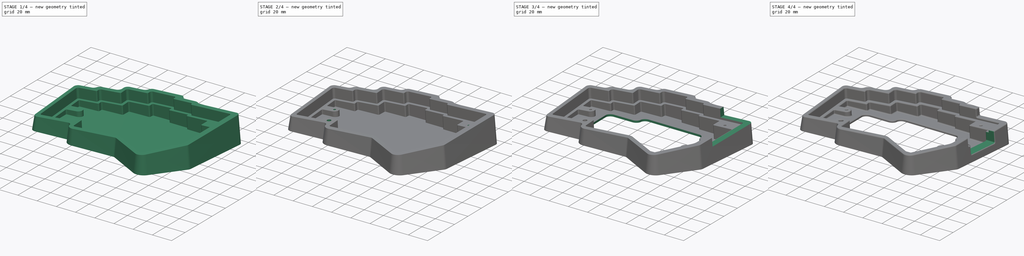
[diagram: build sequence overview — one tinted view per stage of 4, left to right]
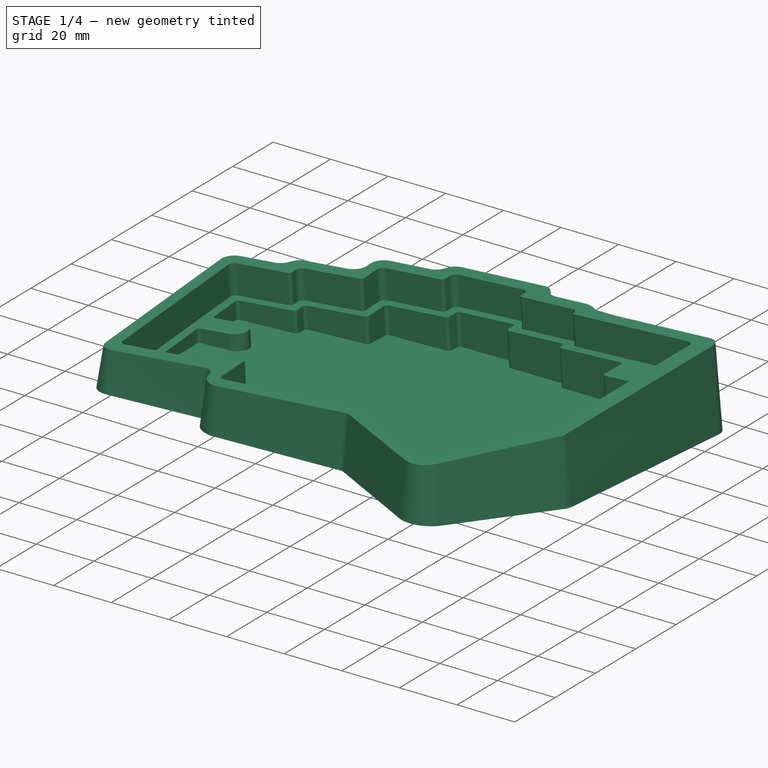
[diagram: stage 1 of 4 — iso view after this stage's code; geometry added in this stage tinted green]
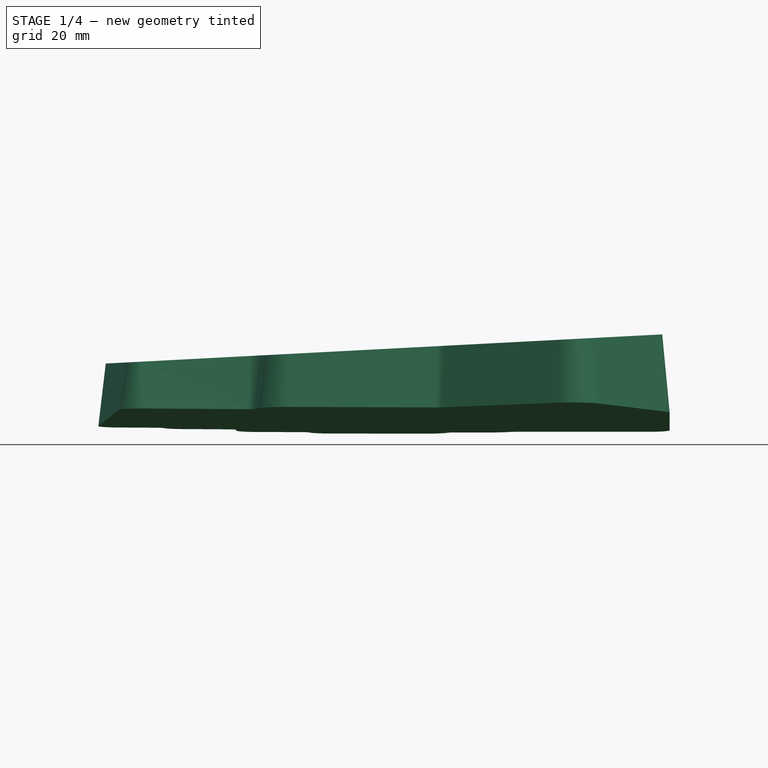
[diagram: stage 1 of 4 — front view after this stage's code; geometry added in this stage tinted green]
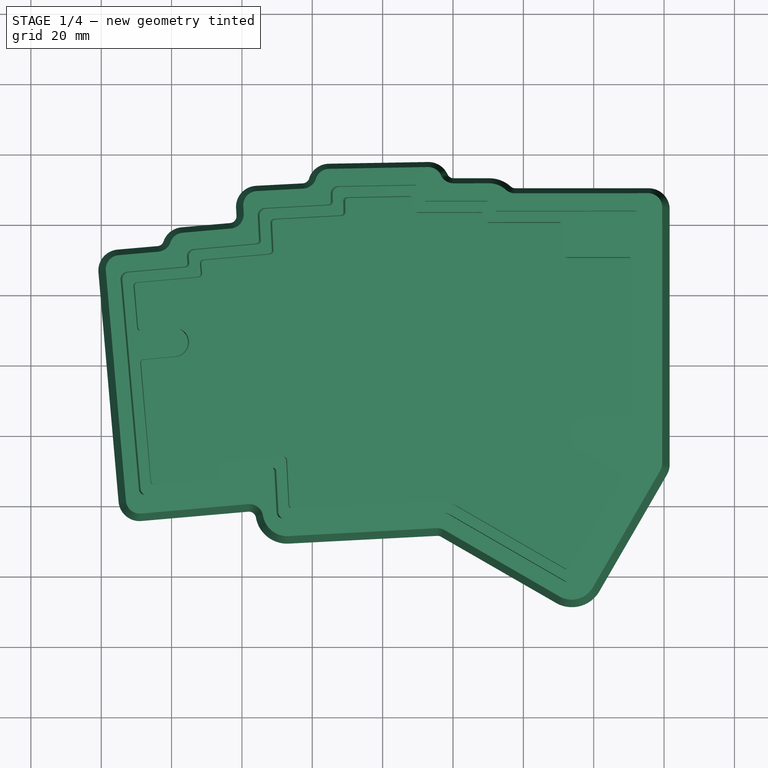
[diagram: stage 1 of 4 — top view after this stage's code; geometry added in this stage tinted green]
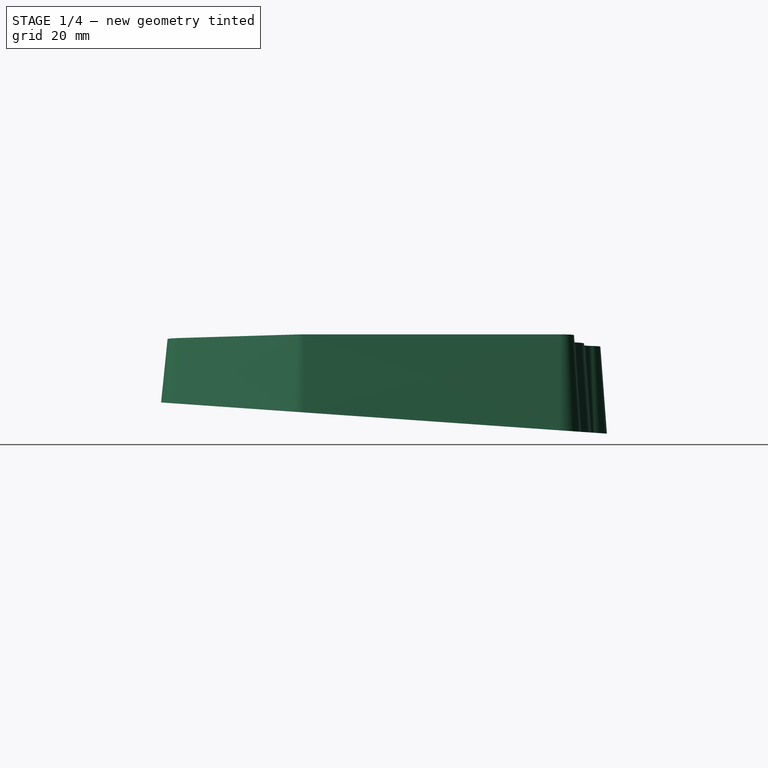
[diagram: stage 1 of 4 — right view after this stage's code; geometry added in this stage tinted green]
FCSTD DOCUMENT  (FreeCAD 0.20R)
Label: case
License: All rights reserved
LicenseURL: http://en.wikipedia.org/wiki/All_rights_reserved
objects: Sketcher::SketchObject×9, PartDesign::Pocket×6, PartDesign::Chamfer×2, PartDesign::AdditiveLoft×1, PartDesign::Hole×1, PartDesign::Fillet×1, PartDesign::Body×1
note: 32 computed .brp shape members not serialized (recipe doc carries the construction recipe); baked Part::Feature solids carry a one-line shape summary decoded from their .brp

FEATURE [Sketcher::SketchObject] Sketch001
  AttachmentOffset = pos=(0,0,20) rot=(0,1,0;-0.05236rad)
  FullyConstrained = false
  MapMode = 5
  Placement = pos=(0,0,20) rot=(0,1,0;6.23083rad)
  Support = -> [XY_Plane]
  sketch-geometry (31):
    g0: ArcOfCircle CenterX=53.7994 CenterY=-59.9303 CenterZ=0 NormalX=0 NormalY=0 NormalZ=1 AngleXU=0 Radius=7 StartAngle=4.18879 EndAngle=5.75959
    g1: ArcOfCircle CenterX=75.5899 CenterY=44.614 CenterZ=0 NormalX=0 NormalY=0 NormalZ=1 AngleXU=0 Radius=4 StartAngle=0 EndAngle=1.5708
    g2: ArcOfCircle CenterX=-27.1544 CenterY=-41.8034 CenterZ=0 NormalX=0 NormalY=0 NormalZ=1 AngleXU=0 Radius=7 StartAngle=3.31242 EndAngle=4.76475
    g3: ArcOfCircle CenterX=-37.9943 CenterY=-43.6734 CenterZ=0 NormalX=0 NormalY=0 NormalZ=1 AngleXU=0 Radius=4 StartAngle=0.170823 EndAngle=1.65806
    g4: LineSegment StartX=-26.788 StartY=-48.7938 StartZ=0 EndX=15.3912 EndY=-46.5833 EndZ=0
    g5: LineSegment StartX=50.2994 StartY=-65.9924 StartZ=0 EndX=17.6006 EndY=-47.1137 EndZ=0
    g6: ArcOfCircle CenterX=15.6006 CenterY=-50.5778 CenterZ=0 NormalX=0 NormalY=0 NormalZ=1 AngleXU=0 Radius=4 StartAngle=1.0472 EndAngle=1.62316
    g7: LineSegment StartX=59.8616 StartY=-63.4303 StartZ=0 EndX=79.054 EndY=-30.188 EndZ=0
    g8: LineSegment StartX=79.5899 StartY=44.614 StartZ=0 EndX=79.5899 EndY=-28.188 EndZ=0
    g9: ArcOfCircle CenterX=75.5899 CenterY=-28.188 CenterZ=0 NormalX=0 NormalY=0 NormalZ=1 AngleXU=0 Radius=4 StartAngle=5.75959 EndAngle=6.28319
    g10: LineSegment StartX=-68.7397 StartY=-42.348 StartZ=0 EndX=-38.3429 EndY=-39.6886 EndZ=0
    g11: ArcOfCircle CenterX=-69.0883 CenterY=-38.3632 CenterZ=0 NormalX=0 NormalY=0 NormalZ=1 AngleXU=0 Radius=4 StartAngle=3.22886 EndAngle=4.79966
    g12: LineSegment StartX=-73.0731 StartY=-38.7118 StartZ=0 EndX=-78.8036 EndY=26.788 EndZ=0
    g13: ArcOfCircle CenterX=-74.8188 CenterY=27.1366 CenterZ=0 NormalX=0 NormalY=0 NormalZ=1 AngleXU=0 Radius=4 StartAngle=1.65806 EndAngle=3.22886
    g14: LineSegment StartX=-63.8307 StartY=32.1132 StartZ=0 EndX=-75.1674 EndY=31.1214 EndZ=0
    g15: ArcOfCircle CenterX=-64.1793 CenterY=36.098 CenterZ=0 NormalX=0 NormalY=0 NormalZ=1 AngleXU=0 Radius=4 StartAngle=4.79966 EndAngle=5.95211
    g16: ArcOfCircle CenterX=-56.6138 CenterY=33.4975 CenterZ=0 NormalX=0 NormalY=0 NormalZ=1 AngleXU=0 Radius=4 StartAngle=1.65806 EndAngle=2.81051
    g17: ArcOfCircle CenterX=-35.6758 CenterY=45.32 CenterZ=0 NormalX=0 NormalY=0 NormalZ=1 AngleXU=0 Radius=4 StartAngle=1.62316 EndAngle=3.19395
    g18: LineSegment StartX=-39.5534 StartY=42.8805 StartZ=0 EndX=-39.6703 EndY=45.1106 EndZ=0
    g19: LineSegment StartX=-43.1993 StartY=38.6864 StartZ=0 EndX=-56.9624 EndY=37.4823 EndZ=0
    g20: ArcOfCircle CenterX=-43.5479 CenterY=42.6712 CenterZ=0 NormalX=0 NormalY=0 NormalZ=1 AngleXU=0 Radius=4 StartAngle=4.79966 EndAngle=6.33555
    g21: LineSegment StartX=-22.6116 StartY=50.0101 StartZ=0 EndX=-35.8851 EndY=49.3145 EndZ=0
    g22: ArcOfCircle CenterX=-22.821 CenterY=54.0047 CenterZ=0 NormalX=0 NormalY=0 NormalZ=1 AngleXU=0 Radius=4 StartAngle=4.76475 EndAngle=5.98022
    g23: ArcOfCircle CenterX=-15.1853 CenterY=51.6178 CenterZ=0 NormalX=0 NormalY=0 NormalZ=1 AngleXU=0 Radius=4 StartAngle=1.58825 EndAngle=2.83863
    g24: LineSegment StartX=12.8977 StartY=56.1086 StartZ=0 EndX=-15.2551 EndY=55.6172 EndZ=0
    g25: LineSegment StartX=30.3349 StartY=51.464 StartZ=0 EndX=20.2302 EndY=51.464 EndZ=0
    g26: ArcOfCircle CenterX=12.9675 CenterY=52.1093 CenterZ=0 NormalX=0 NormalY=0 NormalZ=1 AngleXU=0 Radius=4 StartAngle=0.432715 EndAngle=1.58825
    g27: ArcOfCircle CenterX=20.2302 CenterY=55.464 CenterZ=0 NormalX=0 NormalY=0 NormalZ=1 AngleXU=0 Radius=4 StartAngle=3.57431 EndAngle=4.71239
    g28: LineSegment StartX=75.5899 StartY=48.614 StartZ=0 EndX=37.7226 EndY=48.614 EndZ=0
    g29: ArcOfCircle CenterX=30.3349 CenterY=44.464 CenterZ=0 NormalX=0 NormalY=0 NormalZ=1 AngleXU=0 Radius=7 StartAngle=0.834423 EndAngle=1.5708
    g30: ArcOfCircle CenterX=37.7226 CenterY=52.614 CenterZ=0 NormalX=0 NormalY=0 NormalZ=1 AngleXU=0 Radius=4 StartAngle=3.97602 EndAngle=4.71239
  constraints (31):
    c: Coincident(g12,g13)
    c: Coincident(g13,g14)
    c: Coincident(g11,g12)
    c: Coincident(g10,g11)
    c: Coincident(g14,g15)
    c: Coincident(g15,g16)
    c: Coincident(g16,g19)
    c: Coincident(g19,g20)
    c: Coincident(g17,g18)
    c: Coincident(g18,g20)
    c: Coincident(g3,g10)
    c: Coincident(g17,g21)
    c: Coincident(g2,g3)
    c: Coincident(g2,g4)
    c: Coincident(g21,g22)
    c: Coincident(g22,g23)
    c: Coincident(g23,g24)
    c: Coincident(g24,g26)
    c: Coincident(g4,g6)
    c: Coincident(g26,g27)
    c: Coincident(g5,g6)
    c: Coincident(g25,g27)
    c: Coincident(g25,g29)
    c: Coincident(g29,g30)
    c: Coincident(g28,g30)
    c: Coincident(g0,g5)
    c: Coincident(g0,g7)
    c: Coincident(g1,g28)
    c: Coincident(g7,g9)
    c: Coincident(g8,g9)
    c: Coincident(g1,g8)
FEATURE [Sketcher::SketchObject] Sketch002
  AttachmentOffset = pos=(0,0,0) rot=(1,0,0;-0.069813rad)
  FullyConstrained = false
  MapMode = 5
  Placement = pos=(0,0,0) rot=(1,0,0;6.21337rad)
  Support = -> [XY_Plane]
  sketch-geometry (31):
    g0: LineSegment StartX=12.8628 StartY=58.1083 StartZ=0 EndX=-15.2901 EndY=57.6169 EndZ=0
    g1: ArcOfCircle CenterX=12.9675 CenterY=52.1093 CenterZ=0 NormalX=0 NormalY=0 NormalZ=1 AngleXU=0 Radius=6 StartAngle=0.432715 EndAngle=1.58825
    g2: LineSegment StartX=30.3349 StartY=53.464 StartZ=0 EndX=20.2302 EndY=53.464 EndZ=0
    g3: ArcOfCircle CenterX=20.2302 CenterY=55.464 CenterZ=0 NormalX=0 NormalY=0 NormalZ=1 AngleXU=0 Radius=2 StartAngle=3.57431 EndAngle=4.71239
    g4: ArcOfCircle CenterX=30.3349 CenterY=44.464 CenterZ=0 NormalX=0 NormalY=0 NormalZ=1 AngleXU=0 Radius=9 StartAngle=0.834423 EndAngle=1.5708
    g5: ArcOfCircle CenterX=37.7226 CenterY=52.614 CenterZ=0 NormalX=0 NormalY=0 NormalZ=1 AngleXU=0 Radius=2 StartAngle=3.97602 EndAngle=4.71239
    g6: LineSegment StartX=75.5899 StartY=50.614 StartZ=0 EndX=37.7226 EndY=50.614 EndZ=0
    g7: ArcOfCircle CenterX=75.5899 CenterY=44.614 CenterZ=0 NormalX=0 NormalY=0 NormalZ=1 AngleXU=0 Radius=6 StartAngle=0 EndAngle=1.5708
    g8: LineSegment StartX=81.5899 StartY=44.614 StartZ=0 EndX=81.5899 EndY=-28.188 EndZ=0
    g9: ArcOfCircle CenterX=75.5899 CenterY=-28.188 CenterZ=0 NormalX=0 NormalY=0 NormalZ=1 AngleXU=0 Radius=6 StartAngle=5.75959 EndAngle=6.28319
    g10: LineSegment StartX=61.5937 StartY=-64.4303 StartZ=0 EndX=80.7861 EndY=-31.188 EndZ=0
    g11: ArcOfCircle CenterX=53.7994 CenterY=-59.9303 CenterZ=0 NormalX=0 NormalY=0 NormalZ=1 AngleXU=0 Radius=9 StartAngle=4.18879 EndAngle=5.75959
    g12: LineSegment StartX=49.2994 StartY=-67.7245 StartZ=0 EndX=16.6006 EndY=-48.8458 EndZ=0
    g13: LineSegment StartX=-26.6834 StartY=-50.7911 StartZ=0 EndX=15.4959 EndY=-48.5806 EndZ=0
    g14: ArcOfCircle CenterX=15.6006 CenterY=-50.5778 CenterZ=0 NormalX=0 NormalY=0 NormalZ=1 AngleXU=0 Radius=2 StartAngle=1.0472 EndAngle=1.62316
    g15: ArcOfCircle CenterX=-27.1544 CenterY=-41.8034 CenterZ=0 NormalX=0 NormalY=0 NormalZ=1 AngleXU=0 Radius=9 StartAngle=3.31242 EndAngle=4.76475
    g16: LineSegment StartX=-68.5654 StartY=-44.3403 StartZ=0 EndX=-38.1686 EndY=-41.681 EndZ=0
    g17: ArcOfCircle CenterX=-37.9943 CenterY=-43.6734 CenterZ=0 NormalX=0 NormalY=0 NormalZ=1 AngleXU=0 Radius=2 StartAngle=0.170823 EndAngle=1.65806
    g18: ArcOfCircle CenterX=-69.0883 CenterY=-38.3632 CenterZ=0 NormalX=0 NormalY=0 NormalZ=1 AngleXU=0 Radius=6 StartAngle=3.22886 EndAngle=4.79966
    g19: LineSegment StartX=-75.0655 StartY=-38.8861 StartZ=0 EndX=-80.796 EndY=26.6137 EndZ=0
    g20: ArcOfCircle CenterX=-74.8188 CenterY=27.1366 CenterZ=0 NormalX=0 NormalY=0 NormalZ=1 AngleXU=0 Radius=6 StartAngle=1.65806 EndAngle=3.22886
    g21: LineSegment StartX=-64.005 StartY=34.1056 StartZ=0 EndX=-75.3417 EndY=33.1138 EndZ=0
    g22: ArcOfCircle CenterX=-64.1793 CenterY=36.098 CenterZ=0 NormalX=0 NormalY=0 NormalZ=1 AngleXU=0 Radius=2 StartAngle=4.79966 EndAngle=5.95211
    g23: ArcOfCircle CenterX=-56.6138 CenterY=33.4975 CenterZ=0 NormalX=0 NormalY=0 NormalZ=1 AngleXU=0 Radius=6 StartAngle=1.65806 EndAngle=2.81051
    g24: LineSegment StartX=-43.3736 StartY=40.6788 StartZ=0 EndX=-57.1367 EndY=39.4747 EndZ=0
    g25: ArcOfCircle CenterX=-43.5479 CenterY=42.6712 CenterZ=0 NormalX=0 NormalY=0 NormalZ=1 AngleXU=0 Radius=2 StartAngle=4.79966 EndAngle=6.33555
    g26: LineSegment StartX=-41.5507 StartY=42.7758 StartZ=0 EndX=-41.6675 EndY=45.006 EndZ=0
    g27: ArcOfCircle CenterX=-35.6758 CenterY=45.32 CenterZ=0 NormalX=0 NormalY=0 NormalZ=1 AngleXU=0 Radius=6 StartAngle=1.62316 EndAngle=3.19395
    g28: LineSegment StartX=-22.7163 StartY=52.0074 StartZ=0 EndX=-35.9898 EndY=51.3118 EndZ=0
    g29: ArcOfCircle CenterX=-22.821 CenterY=54.0047 CenterZ=0 NormalX=0 NormalY=0 NormalZ=1 AngleXU=0 Radius=2 StartAngle=4.76475 EndAngle=5.98022
    g30: ArcOfCircle CenterX=-15.1853 CenterY=51.6178 CenterZ=0 NormalX=0 NormalY=0 NormalZ=1 AngleXU=0 Radius=6 StartAngle=1.58825 EndAngle=2.83863
  constraints (31):
    c: Coincident(g19,g20)
    c: Coincident(g20,g21)
    c: Coincident(g18,g19)
    c: Coincident(g16,g18)
    c: Coincident(g21,g22)
    c: Coincident(g22,g23)
    c: Coincident(g23,g24)
    c: Coincident(g24,g25)
    c: Coincident(g26,g27)
    c: Coincident(g25,g26)
    c: Coincident(g16,g17)
    c: Coincident(g15,g17)
    c: Coincident(g27,g28)
    c: Coincident(g13,g15)
    c: Coincident(g28,g29)
    c: Coincident(g29,g30)
    c: Coincident(g0,g30)
    c: Coincident(g0,g1)
    c: Coincident(g13,g14)
    c: Coincident(g12,g14)
    c: Coincident(g1,g3)
    c: Coincident(g2,g3)
    c: Coincident(g2,g4)
    c: Coincident(g4,g5)
    c: Coincident(g5,g6)
    c: Coincident(g11,g12)
    c: Coincident(g10,g11)
    c: Coincident(g6,g7)
    c: Coincident(g9,g10)
    c: Coincident(g8,g9)
    c: Coincident(g7,g8)
FEATURE [PartDesign::AdditiveLoft] AdditiveLoft
  Closed = true
  Profile = -> Sketch001
  Ruled = true
  Sections = -> [Sketch002]
FEATURE [Sketcher::SketchObject] Sketch
  FullyConstrained = false
  MapMode = 5
  Placement = pos=(-1.04528,-2e-16,19.9452) rot=(0,-1,0;0.05236rad)
  Support = -> [AdditiveLoft]
  sketch-geometry (39):
    g0: LineSegment StartX=9.98545 StartY=51.057 StartZ=0 EndX=-11.7612 EndY=50.6775 EndZ=0
    g1: ArcOfCircle CenterX=10.0204 CenterY=49.0574 CenterZ=0 NormalX=0 NormalY=0 NormalZ=1 AngleXU=0 Radius=2 StartAngle=0.0174533 EndAngle=1.58825
    g2: ArcOfCircle CenterX=-11.7263 CenterY=48.6778 CenterZ=0 NormalX=0 NormalY=0 NormalZ=1 AngleXU=0 Radius=2 StartAngle=1.58825 EndAngle=3.15905
    g3: ArcOfCircle CenterX=72.5899 CenterY=41.614 CenterZ=0 NormalX=0 NormalY=0 NormalZ=1 AngleXU=0 Radius=2 StartAngle=0 EndAngle=1.5708
    g4: LineSegment StartX=74.5899 StartY=41.614 StartZ=0 EndX=74.5899 EndY=-24.9726 EndZ=0
    g5: LineSegment StartX=55.5315 StartY=-60.9303 StartZ=0 EndX=73.1162 EndY=-30.4726 EndZ=0
    g6: ArcOfCircle CenterX=63.5899 CenterY=-24.9726 CenterZ=0 NormalX=0 NormalY=0 NormalZ=1 AngleXU=0 Radius=11 StartAngle=5.75959 EndAngle=6.28319
    g7: ArcOfCircle CenterX=53.7994 CenterY=-59.9303 CenterZ=0 NormalX=0 NormalY=0 NormalZ=1 AngleXU=0 Radius=2 StartAngle=4.18879 EndAngle=5.75959
    g8: LineSegment StartX=52.7994 StartY=-61.6623 StartZ=0 EndX=20.1006 EndY=-42.7836 EndZ=0
    g9: LineSegment StartX=-27.0497 StartY=-43.8007 StartZ=0 EndX=15.1295 EndY=-41.5902 EndZ=0
    g10: ArcOfCircle CenterX=15.6006 CenterY=-50.5778 CenterZ=0 NormalX=0 NormalY=0 NormalZ=1 AngleXU=0 Radius=9 StartAngle=1.0472 EndAngle=1.62316
    g11: ArcOfCircle CenterX=-27.1544 CenterY=-41.8034 CenterZ=0 NormalX=0 NormalY=0 NormalZ=1 AngleXU=0 Radius=2 StartAngle=3.19395 EndAngle=4.76475
    g12: ArcOfCircle CenterX=-44.6939 CenterY=-33.2175 CenterZ=0 NormalX=0 NormalY=0 NormalZ=1 AngleXU=0 Radius=2 StartAngle=4.79966 EndAngle=6.37045
    g13: LineSegment StartX=-66.1869 StartY=-37.1055 StartZ=0 EndX=-44.5196 EndY=-35.2099 EndZ=0
    g14: ArcOfCircle CenterX=-66.3612 CenterY=-35.1131 CenterZ=0 NormalX=0 NormalY=0 NormalZ=1 AngleXU=0 Radius=2 StartAngle=3.22886 EndAngle=4.79966
    g15: LineSegment StartX=-68.3536 StartY=-35.2874 StartZ=0 EndX=-73.5611 EndY=24.2352 EndZ=0
    g16: ArcOfCircle CenterX=-71.5687 CenterY=24.4095 CenterZ=0 NormalX=0 NormalY=0 NormalZ=1 AngleXU=0 Radius=2 StartAngle=1.65806 EndAngle=3.22886
    g17: ArcOfCircle CenterX=-52.6765 CenterY=30.8305 CenterZ=0 NormalX=0 NormalY=0 NormalZ=1 AngleXU=0 Radius=2 StartAngle=1.65806 EndAngle=3.22886
    g18: ArcOfCircle CenterX=-32.5229 CenterY=42.4811 CenterZ=0 NormalX=0 NormalY=0 NormalZ=1 AngleXU=0 Radius=2 StartAngle=1.62316 EndAngle=3.19395
    g19: LineSegment StartX=30.3349 StartY=46.464 StartZ=0 EndX=13.0486 EndY=46.464 EndZ=0
    g20: LineSegment StartX=12.0488 StartY=47.4465 StartZ=0 EndX=12.0201 EndY=49.0923 EndZ=0
    g21: ArcOfCircle CenterX=13.0486 CenterY=47.464 CenterZ=0 NormalX=0 NormalY=0 NormalZ=1 AngleXU=0 Radius=1 StartAngle=3.15905 EndAngle=4.71239
    g22: LineSegment StartX=-13.726 StartY=48.6429 StartZ=0 EndX=-13.6875 EndY=46.4374 EndZ=0
    g23: LineSegment StartX=-14.635 StartY=45.4213 StartZ=0 EndX=-32.6275 EndY=44.4784 EndZ=0
    g24: ArcOfCircle CenterX=-14.6874 CenterY=46.4199 CenterZ=0 NormalX=0 NormalY=0 NormalZ=1 AngleXU=0 Radius=1 StartAngle=4.76475 EndAngle=6.30064
    g25: LineSegment StartX=72.5899 StartY=43.614 StartZ=0 EndX=33.3312 EndY=43.614 EndZ=0
    g26: ArcOfCircle CenterX=30.3349 CenterY=44.464 CenterZ=0 NormalX=0 NormalY=0 NormalZ=1 AngleXU=0 Radius=2 StartAngle=0.0500208 EndAngle=1.5708
    g27: ArcOfCircle CenterX=33.3312 CenterY=44.614 CenterZ=0 NormalX=0 NormalY=0 NormalZ=1 AngleXU=0 Radius=1 StartAngle=3.19161 EndAngle=4.71239
    g28: LineSegment StartX=-35.0674 StartY=34.3787 StartZ=0 EndX=-52.8508 EndY=32.8229 EndZ=0
    g29: LineSegment StartX=-34.5201 StartY=42.3764 StartZ=0 EndX=-34.1559 EndY=35.4273 EndZ=0
    g30: ArcOfCircle CenterX=-35.1546 CenterY=35.3749 CenterZ=0 NormalX=0 NormalY=0 NormalZ=1 AngleXU=0 Radius=1 StartAngle=4.79966 EndAngle=6.33555
    g31: LineSegment StartX=-55.4254 StartY=27.8295 StartZ=0 EndX=-71.743 EndY=26.4019 EndZ=0
    g32: LineSegment StartX=-54.6689 StartY=30.6562 StartZ=0 EndX=-54.5163 EndY=28.9129 EndZ=0
    g33: ArcOfCircle CenterX=-55.5125 CenterY=28.8257 CenterZ=0 NormalX=0 NormalY=0 NormalZ=1 AngleXU=0 Radius=1 StartAngle=4.79966 EndAngle=6.37045
    g34: LineSegment StartX=-42.7016 StartY=-33.0432 StartZ=0 EndX=-42.8541 EndY=-31.2998 EndZ=0
    g35: ArcOfCircle CenterX=-41.8579 CenterY=-31.2127 CenterZ=0 NormalX=0 NormalY=0 NormalZ=1 AngleXU=0 Radius=1 StartAngle=1.65806 EndAngle=3.22886
    g36: LineSegment StartX=-41.945 StartY=-30.2165 StartZ=0 EndX=-30.8516 EndY=-29.2459 EndZ=0
    g37: LineSegment StartX=-29.7658 StartY=-30.1898 StartZ=0 EndX=-29.1517 EndY=-41.9081 EndZ=0
    g38: ArcOfCircle CenterX=-30.7644 CenterY=-30.2421 CenterZ=0 NormalX=0 NormalY=0 NormalZ=1 AngleXU=0 Radius=1 StartAngle=0.0523599 EndAngle=1.65806
  constraints (39):
    c: Coincident(g15,g16)
    c: Coincident(g16,g31)
    c: Coincident(g14,g15)
    c: Coincident(g13,g14)
    c: Coincident(g31,g33)
    c: Coincident(g17,g32)
    c: Coincident(g32,g33)
    c: Coincident(g17,g28)
    c: Coincident(g12,g13)
    c: Coincident(g34,g35)
    c: Coincident(g12,g34)
    c: Coincident(g35,g36)
    c: Coincident(g28,g30)
    c: Coincident(g18,g29)
    c: Coincident(g29,g30)
    c: Coincident(g18,g23)
    c: Coincident(g36,g38)
    c: Coincident(g37,g38)
    c: Coincident(g11,g37)
    c: Coincident(g9,g11)
    c: Coincident(g23,g24)
    c: Coincident(g2,g22)
    c: Coincident(g22,g24)
    c: Coincident(g0,g2)
    c: Coincident(g0,g1)
    c: Coincident(g1,g20)
    c: Coincident(g20,g21)
    c: Coincident(g19,g21)
    c: Coincident(g9,g10)
    c: Coincident(g8,g10)
    c: Coincident(g19,g26)
    c: Coincident(g26,g27)
    c: Coincident(g25,g27)
    c: Coincident(g7,g8)
    c: Coincident(g5,g7)
    c: Coincident(g3,g25)
    c: Coincident(g5,g6)
    c: Coincident(g4,g6)
    c: Coincident(g3,g4)
FEATURE [PartDesign::Pocket] Pocket
  BaseFeature = -> AdditiveLoft
  Direction = (0.052336,0,-0.99863)
  Length = 10
  Length2 = 5
  Profile = -> Sketch
  ReferenceAxis = -> Sketch [N_Axis]
  Type = 0
FEATURE [Sketcher::SketchObject] Sketch003
  FullyConstrained = false
  MapMode = 5
  Placement = pos=(-0.521925,-1e-16,9.95892) rot=(0,-1,0;0.05236rad)
  Support = -> [Pocket]
  sketch-geometry (54):
    g0: ArcOfCircle CenterX=15.6006 CenterY=-50.5778 CenterZ=0 NormalX=0 NormalY=0 NormalZ=1 AngleXU=0 Radius=12 StartAngle=1.0472 EndAngle=1.62316
    g1: ArcOfCircle CenterX=50.5899 CenterY=39.614 CenterZ=0 NormalX=0 NormalY=0 NormalZ=1 AngleXU=0 Radius=1 StartAngle=0 EndAngle=1.5708
    g2: LineSegment StartX=51.5899 StartY=39.614 StartZ=0 EndX=51.5899 EndY=31.614 EndZ=0
    g3: ArcOfCircle CenterX=52.5899 CenterY=31.614 CenterZ=0 NormalX=0 NormalY=0 NormalZ=1 AngleXU=0 Radius=1 StartAngle=3.14159 EndAngle=4.71239
    g4: LineSegment StartX=70.5899 StartY=30.614 StartZ=0 EndX=52.5899 EndY=30.614 EndZ=0
    g5: ArcOfCircle CenterX=70.5899 CenterY=29.614 CenterZ=0 NormalX=0 NormalY=0 NormalZ=1 AngleXU=0 Radius=1 StartAngle=0 EndAngle=1.5708
    g6: LineSegment StartX=52.5674 StartY=-58.0642 StartZ=0 EndX=21.6006 EndY=-40.1855 EndZ=0
    g7: ArcOfCircle CenterX=53.0674 CenterY=-57.1982 CenterZ=0 NormalX=0 NormalY=0 NormalZ=1 AngleXU=0 Radius=1 StartAngle=4.18879 EndAngle=5.75959
    g8: ArcOfCircle CenterX=-46.8606 CenterY=-31.3994 CenterZ=0 NormalX=0 NormalY=0 NormalZ=1 AngleXU=0 Radius=1 StartAngle=4.79966 EndAngle=6.37045
    g9: LineSegment StartX=-64.4559 StartY=-33.9426 StartZ=0 EndX=-46.7735 EndY=-32.3956 EndZ=0
    g10: ArcOfCircle CenterX=-64.5431 CenterY=-32.9464 CenterZ=0 NormalX=0 NormalY=0 NormalZ=1 AngleXU=0 Radius=1 StartAngle=3.22886 EndAngle=4.79966
    g11: ArcOfCircle CenterX=-50.5098 CenterY=29.0124 CenterZ=0 NormalX=0 NormalY=0 NormalZ=1 AngleXU=0 Radius=1 StartAngle=1.65806 EndAngle=3.22886
    g12: ArcOfCircle CenterX=-30.4209 CenterY=40.5885 CenterZ=0 NormalX=0 NormalY=0 NormalZ=1 AngleXU=0 Radius=1 StartAngle=1.62316 EndAngle=3.19395
    g13: ArcOfCircle CenterX=-9.69173 CenterY=46.713 CenterZ=0 NormalX=0 NormalY=0 NormalZ=1 AngleXU=0 Radius=1 StartAngle=1.58825 EndAngle=3.15905
    g14: LineSegment StartX=8.03811 StartY=48.0226 StartZ=0 EndX=-9.70918 EndY=47.7128 EndZ=0
    g15: ArcOfCircle CenterX=8.05557 CenterY=47.0228 CenterZ=0 NormalX=0 NormalY=0 NormalZ=1 AngleXU=0 Radius=1 StartAngle=0.0174533 EndAngle=1.58825
    g16: ArcOfCircle CenterX=28.3349 CenterY=42.464 CenterZ=0 NormalX=0 NormalY=0 NormalZ=1 AngleXU=0 Radius=1 StartAngle=0 EndAngle=1.5708
    g17: LineSegment StartX=50.5899 StartY=40.614 StartZ=0 EndX=30.3349 EndY=40.614 EndZ=0
    g18: LineSegment StartX=29.3349 StartY=41.614 StartZ=0 EndX=29.3349 EndY=42.464 EndZ=0
    g19: ArcOfCircle CenterX=30.3349 CenterY=41.614 CenterZ=0 NormalX=0 NormalY=0 NormalZ=1 AngleXU=0 Radius=1 StartAngle=3.14159 EndAngle=4.71239
    g20: LineSegment StartX=28.3349 StartY=43.464 StartZ=0 EndX=10.1005 EndY=43.464 EndZ=0
    g21: LineSegment StartX=9.10069 StartY=44.4465 StartZ=0 EndX=9.05541 EndY=47.0402 EndZ=0
    g22: ArcOfCircle CenterX=10.1005 CenterY=44.464 CenterZ=0 NormalX=0 NormalY=0 NormalZ=1 AngleXU=0 Radius=1 StartAngle=3.15905 EndAngle=4.71239
    g23: LineSegment StartX=-11.5849 StartY=42.577 StartZ=0 EndX=-30.4733 EndY=41.5871 EndZ=0
    g24: LineSegment StartX=-10.6916 StartY=46.6955 StartZ=0 EndX=-10.6374 EndY=43.5931 EndZ=0
    g25: ArcOfCircle CenterX=-11.6373 CenterY=43.5757 CenterZ=0 NormalX=0 NormalY=0 NormalZ=1 AngleXU=0 Radius=1 StartAngle=4.76475 EndAngle=6.30064
    g26: LineSegment StartX=-31.9199 StartY=31.6427 StartZ=0 EndX=-50.5969 EndY=30.0086 EndZ=0
    g27: LineSegment StartX=-31.4196 StartY=40.5362 StartZ=0 EndX=-31.0084 EndY=32.6912 EndZ=0
    g28: ArcOfCircle CenterX=-32.007 CenterY=32.6388 CenterZ=0 NormalX=0 NormalY=0 NormalZ=1 AngleXU=0 Radius=1 StartAngle=4.79966 EndAngle=6.33555
    g29: LineSegment StartX=-51.506 StartY=28.9253 StartZ=0 EndX=-51.2663 EndY=26.1857 EndZ=0
    g30: ArcOfCircle CenterX=-52.2625 CenterY=26.0986 CenterZ=0 NormalX=0 NormalY=0 NormalZ=1 AngleXU=0 Radius=1 StartAngle=4.79966 EndAngle=6.37045
    g31: LineSegment StartX=-52.1753 StartY=25.1024 StartZ=0 EndX=-69.4892 EndY=23.5876 EndZ=0
    g32: ArcOfCircle CenterX=-69.402 CenterY=22.5914 CenterZ=0 NormalX=0 NormalY=0 NormalZ=1 AngleXU=0 Radius=1 StartAngle=1.65806 EndAngle=3.22886
    g33: LineSegment StartX=-45.8645 StartY=-31.3123 StartZ=0 EndX=-46.1041 EndY=-28.5727 EndZ=0
    g34: ArcOfCircle CenterX=-45.1079 CenterY=-28.4856 CenterZ=0 NormalX=0 NormalY=0 NormalZ=1 AngleXU=0 Radius=1 StartAngle=1.65806 EndAngle=3.22886
    g35: LineSegment StartX=-45.1951 StartY=-27.4894 StartZ=0 EndX=-28.0183 EndY=-25.9866 EndZ=0
    g36: ArcOfCircle CenterX=-27.9311 CenterY=-26.9828 CenterZ=0 NormalX=0 NormalY=0 NormalZ=1 AngleXU=0 Radius=1 StartAngle=0.0523599 EndAngle=1.65806
    g37: LineSegment StartX=-25.2095 StartY=-40.7001 StartZ=0 EndX=14.9725 EndY=-38.5943 EndZ=0
    g38: LineSegment StartX=-26.2604 StartY=-39.7538 StartZ=0 EndX=-26.9325 EndY=-26.9305 EndZ=0
    g39: ArcOfCircle CenterX=-25.2618 CenterY=-39.7015 CenterZ=0 NormalX=0 NormalY=0 NormalZ=1 AngleXU=0 Radius=1 StartAngle=3.19395 EndAngle=4.76475
    g40: LineSegment StartX=53.9334 StartY=-57.6982 StartZ=0 EndX=68.6209 EndY=-32.2587 EndZ=0
    g41: ArcOfCircle CenterX=67.7549 CenterY=-31.7587 CenterZ=0 NormalX=0 NormalY=0 NormalZ=1 AngleXU=0 Radius=1 StartAngle=5.75959 EndAngle=7.33038
    g42: LineSegment StartX=71.5899 StartY=29.614 StartZ=0 EndX=71.5899 EndY=-13.7 EndZ=0
    g43: ArcOfCircle CenterX=70.5899 CenterY=-13.7 CenterZ=0 NormalX=0 NormalY=0 NormalZ=1 AngleXU=0 Radius=1 StartAngle=4.71239 EndAngle=6.28319
    g44: LineSegment StartX=58.8686 StartY=-14.7 StartZ=0 EndX=70.5899 EndY=-14.7 EndZ=0
    g45: LineSegment StartX=56.3686 StartY=-24.0301 StartZ=0 EndX=68.2549 EndY=-30.8927 EndZ=0
    g46: ArcOfCircle CenterX=58.8686 CenterY=-19.7 CenterZ=0 NormalX=0 NormalY=0 NormalZ=1 AngleXU=0 Radius=5 StartAngle=1.5708 EndAngle=4.18879
    g47: ArcOfCircle CenterX=-59.0029 CenterY=6.55795 CenterZ=0 NormalX=0 NormalY=0 NormalZ=1 AngleXU=0 Radius=4.1 StartAngle=4.79966 EndAngle=7.94125
    g48: LineSegment StartX=-68.2883 StartY=9.86125 StartZ=0 EndX=-59.3602 EndY=10.6424 EndZ=0
    g49: LineSegment StartX=-69.3716 StartY=10.7703 StartZ=0 EndX=-70.3982 EndY=22.5043 EndZ=0
    g50: ArcOfCircle CenterX=-68.3754 CenterY=10.8574 CenterZ=0 NormalX=0 NormalY=0 NormalZ=1 AngleXU=0 Radius=1 StartAngle=3.22886 EndAngle=4.79966
    g51: LineSegment StartX=-67.5736 StartY=1.69245 StartZ=0 EndX=-58.6456 EndY=2.47356 EndZ=0
    g52: LineSegment StartX=-65.5393 StartY=-33.0336 StartZ=0 EndX=-68.4827 EndY=0.609102 EndZ=0
    g53: ArcOfCircle CenterX=-67.4865 CenterY=0.696258 CenterZ=0 NormalX=0 NormalY=0 NormalZ=1 AngleXU=0 Radius=1 StartAngle=1.65806 EndAngle=3.22886
  constraints (54):
    c: Coincident(g32,g49)
    c: Coincident(g31,g32)
    c: Coincident(g49,g50)
    c: Coincident(g52,g53)
    c: Coincident(g48,g50)
    c: Coincident(g51,g53)
    c: Coincident(g10,g52)
    c: Coincident(g9,g10)
    c: Coincident(g47,g48)
    c: Coincident(g47,g51)
    c: Coincident(g30,g31)
    c: Coincident(g11,g29)
    c: Coincident(g29,g30)
    c: Coincident(g11,g26)
    c: Coincident(g8,g9)
    c: Coincident(g33,g34)
    c: Coincident(g8,g33)
    c: Coincident(g34,g35)
    c: Coincident(g26,g28)
    c: Coincident(g12,g27)
    c: Coincident(g27,g28)
    c: Coincident(g12,g23)
    c: Coincident(g35,g36)
    c: Coincident(g36,g38)
    c: Coincident(g38,g39)
    c: Coincident(g37,g39)
    c: Coincident(g23,g25)
    c: Coincident(g13,g24)
    c: Coincident(g24,g25)
    c: Coincident(g13,g14)
    c: Coincident(g14,g15)
    c: Coincident(g15,g21)
    c: Coincident(g21,g22)
    c: Coincident(g20,g22)
    c: Coincident(g0,g37)
    c: Coincident(g0,g6)
    c: Coincident(g16,g20)
    c: Coincident(g18,g19)
    c: Coincident(g16,g18)
    c: Coincident(g17,g19)
    c: Coincident(g1,g17)
    c: Coincident(g2,g3)
    c: Coincident(g1,g2)
    c: Coincident(g6,g7)
    c: Coincident(g3,g4)
    c: Coincident(g7,g40)
    c: Coincident(g45,g46)
    c: Coincident(g44,g46)
    c: Coincident(g41,g45)
    c: Coincident(g40,g41)
    c: Coincident(g43,g44)
    c: Coincident(g4,g5)
    c: Coincident(g42,g43)
    c: Coincident(g5,g42)
FEATURE [Sketcher::SketchObject] Sketch004
  FullyConstrained = false
  MapMode = 5
  Placement = pos=(-0.521925,-1e-16,9.95892) rot=(0,-1,0;0.05236rad)
  Support = -> [Pocket]
  sketch-geometry (3):
    g0: Circle CenterX=60 CenterY=-20 CenterZ=0 NormalX=0 NormalY=0 NormalZ=-1 AngleXU=0 Radius=1.1
    g1: Circle CenterX=61.0899 CenterY=35.114 CenterZ=0 NormalX=0 NormalY=0 NormalZ=-1 AngleXU=0 Radius=1.1
    g2: Circle CenterX=-59.0029 CenterY=6.55795 CenterZ=0 NormalX=0 NormalY=0 NormalZ=-1 AngleXU=0 Radius=1.1
FEATURE [PartDesign::Pocket] Pocket001
  BaseFeature = -> Pocket
  Direction = (0.052336,0,-0.99863)
  Length = 0
  Length2 = 5
  Offset = -2
  Profile = -> Sketch003
  ReferenceAxis = -> Sketch003 [N_Axis]
  Type = 3
  UpToFace = -> Pocket [Face72]
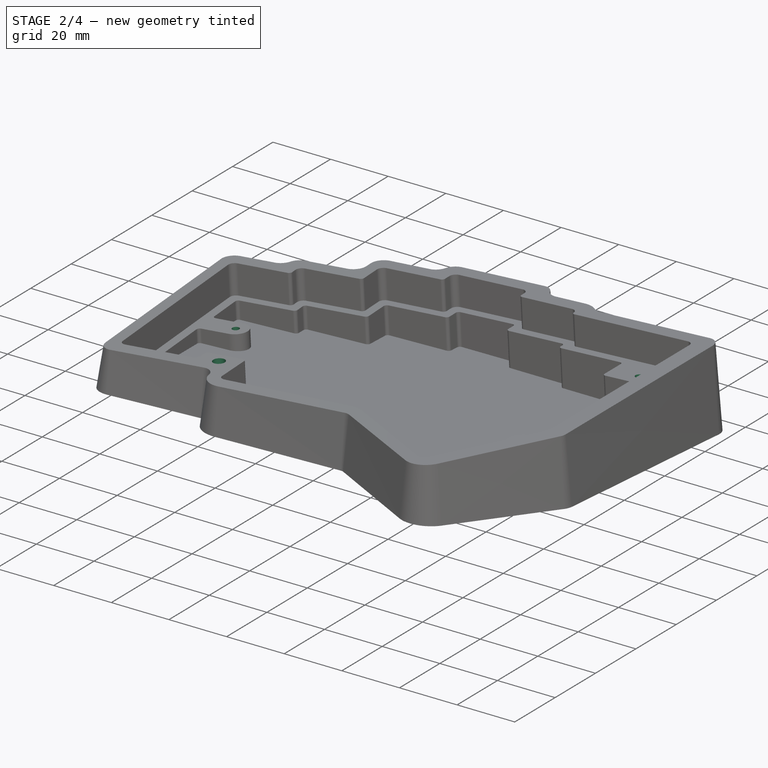
[diagram: stage 2 of 4 — iso view after this stage's code; geometry added in this stage tinted green]
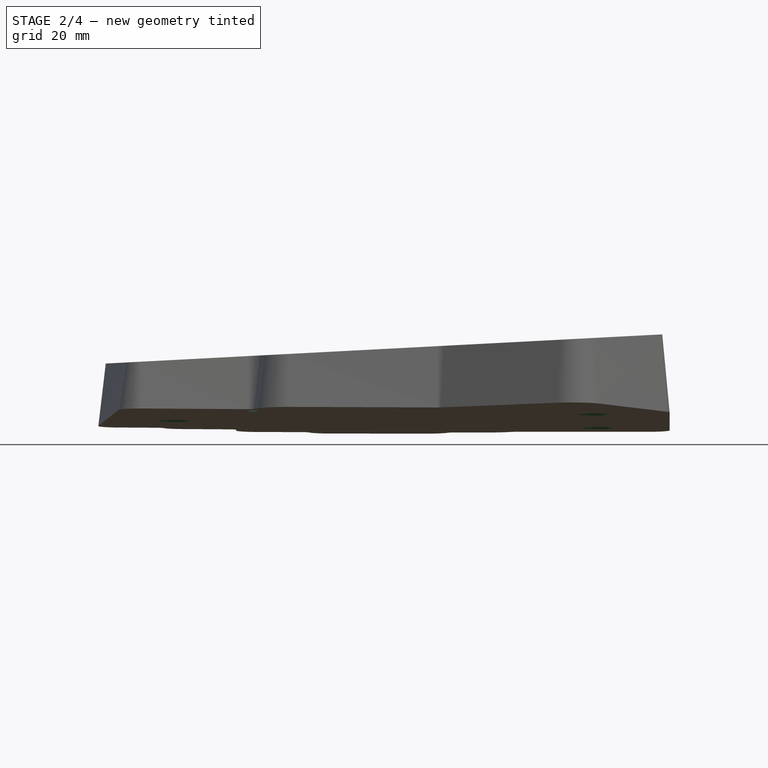
[diagram: stage 2 of 4 — front view after this stage's code; geometry added in this stage tinted green]
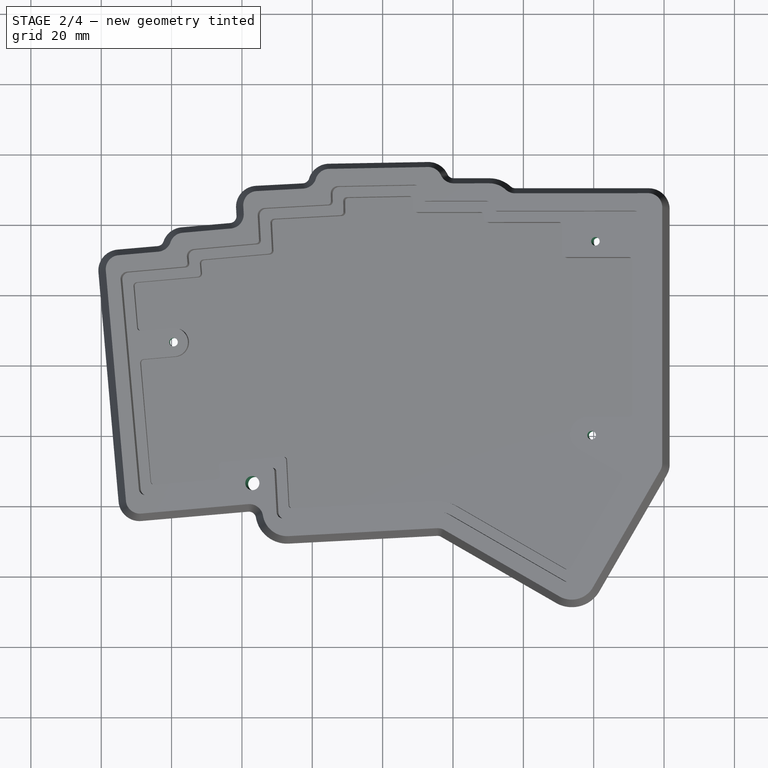
[diagram: stage 2 of 4 — top view after this stage's code; geometry added in this stage tinted green]
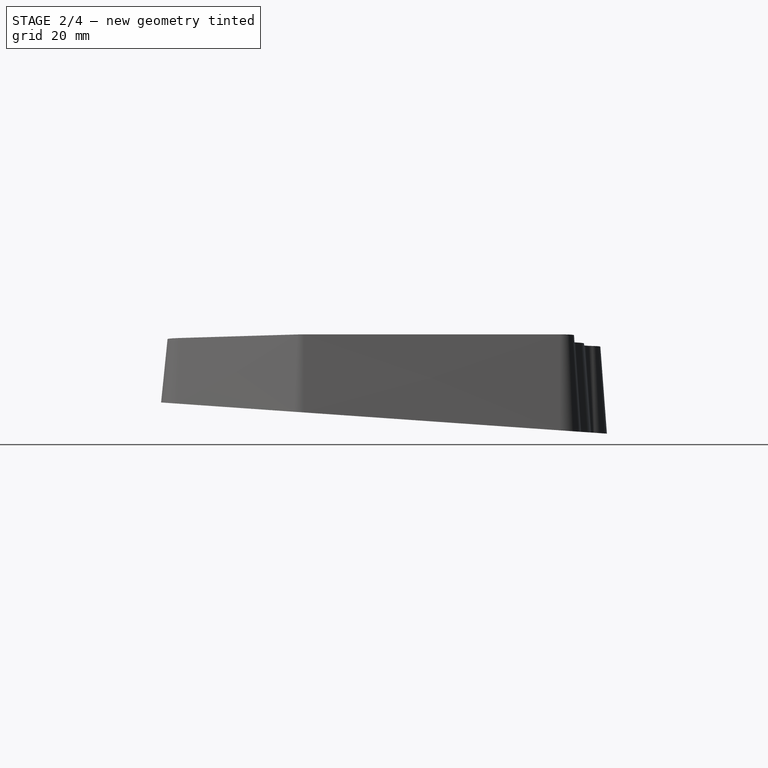
[diagram: stage 2 of 4 — right view after this stage's code; geometry added in this stage tinted green]
FEATURE [PartDesign::Hole] Hole
  BaseFeature = -> Pocket001
  CustomThreadClearance = 0
  Depth = 420.333
  DepthType = 1
  Diameter = 2.42
  DrillForDepth = false
  DrillPoint = 1
  DrillPointAngle = 118
  HoleCutCountersinkAngle = 90
  HoleCutCustomValues = false
  HoleCutDepth = 0
  HoleCutDiameter = 6.1
  HoleCutType = 0
  ModelThread = false
  Profile = -> Sketch004
  Tapered = false
  TaperedAngle = 90
  ThreadClass = 0
  ThreadDepth = 420.333
  ThreadDepthType = 0
  ThreadDirection = 0
  ThreadFit = 0
  ThreadSize = 7
  ThreadType = 1
  Threaded = false
  UseCustomThreadClearance = false
FEATURE [PartDesign::Chamfer] Chamfer
  Angle = 45
  Base = -> Hole [Edge211,Edge212,Edge213]
  BaseFeature = -> Hole
  ChamferType = 0
  FlipDirection = false
  Size = 3
  Size2 = 1
  SupportTransform = false
  UseAllEdges = false
FEATURE [Sketcher::SketchObject] Sketch005
  ExternalGeometry = -> [Pocket001]
  FullyConstrained = true
  MapMode = 5
  Placement = pos=(-1.04528,-2e-16,19.9452) rot=(0,-1,0;0.05236rad)
  Support = -> [AdditiveLoft]
  sketch-geometry (3):
    g0: Circle CenterX=-36.0497 CenterY=-33.716 CenterZ=0 NormalX=0 NormalY=0 NormalZ=1 AngleXU=0 Radius=2
    g1: GeomPoint X=-36.3983 Y=-29.7312 Z=0
    g2: LineSegment StartX=-36.3983 StartY=-29.7312 StartZ=0 EndX=-36.0497 EndY=-33.716 EndZ=0
  constraints (6):
    c: Symmetric(g-3,g-3,g1)
    c: Coincident(g2,g1)
    c: Coincident(g2,g0)
    c: Perpendicular(g-3,g2)
    c: Distance(g2) = 4
    c: Diameter(g0) = 4
FEATURE [PartDesign::Pocket] Pocket002
  BaseFeature = -> Chamfer
  Direction = (0.052336,0,-0.99863)
  Length = 5
  Length2 = 5
  Profile = -> Sketch005
  ReferenceAxis = -> Sketch005 [N_Axis]
  Type = 1
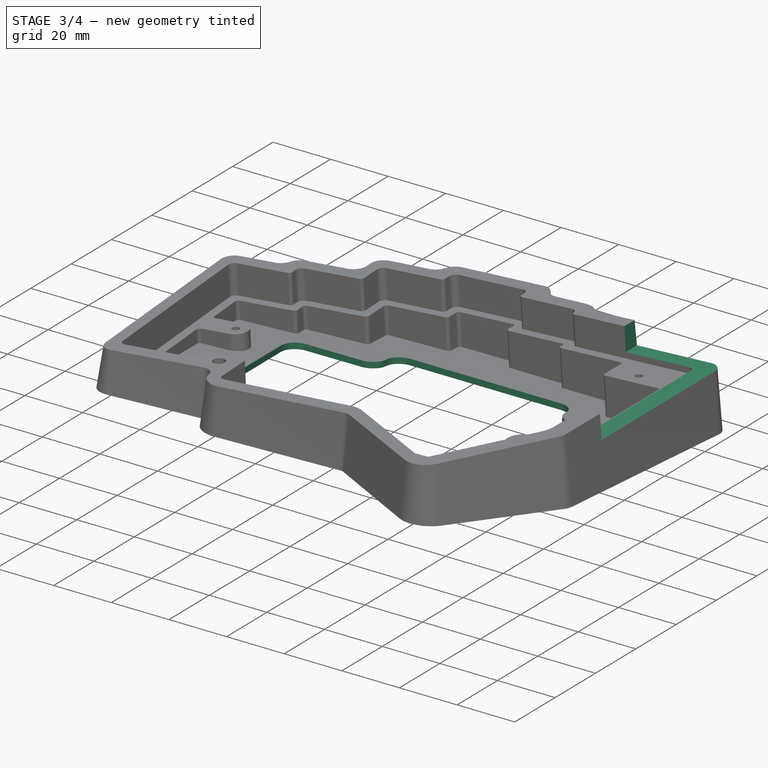
[diagram: stage 3 of 4 — iso view after this stage's code; geometry added in this stage tinted green]
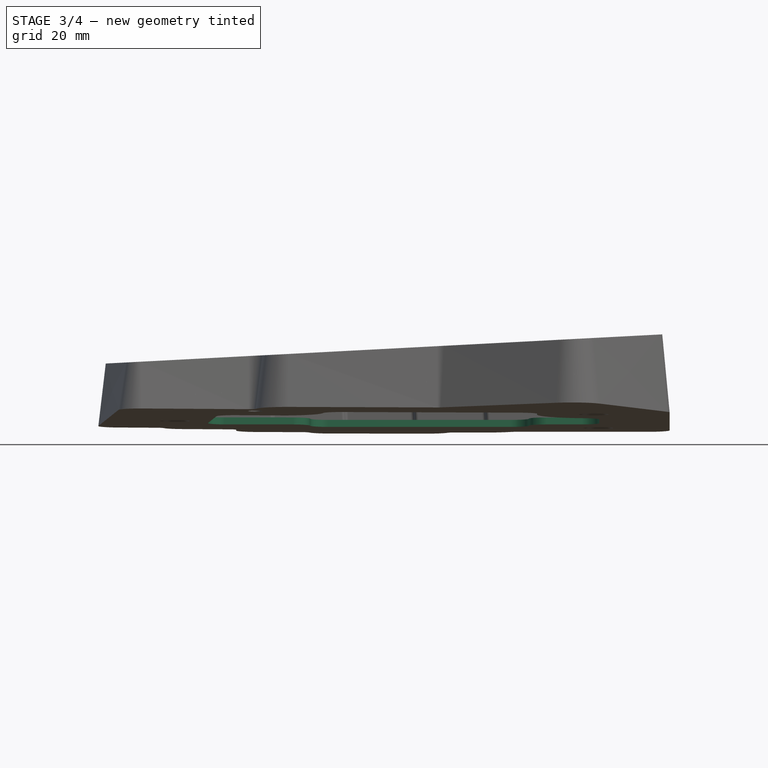
[diagram: stage 3 of 4 — front view after this stage's code; geometry added in this stage tinted green]
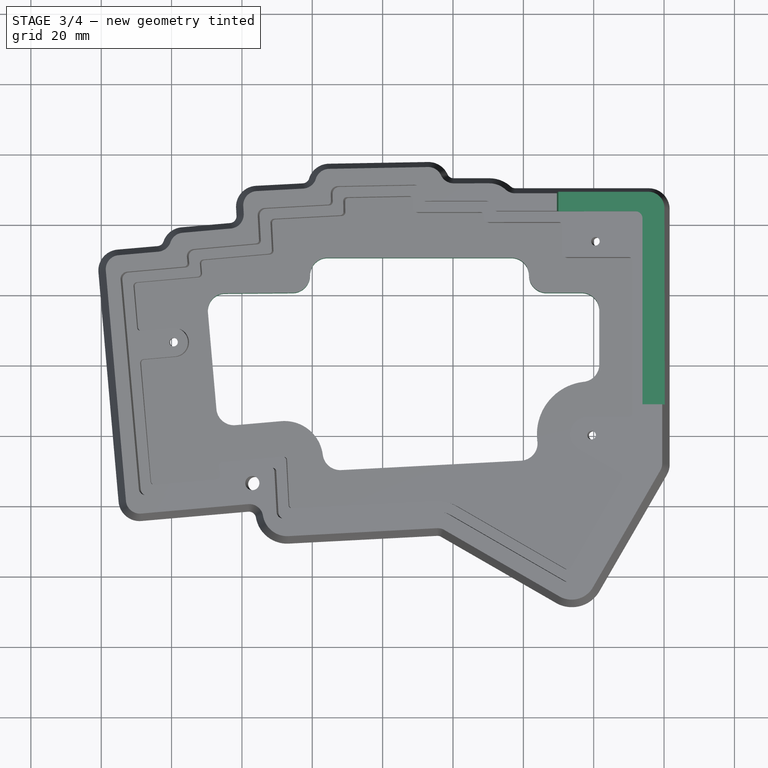
[diagram: stage 3 of 4 — top view after this stage's code; geometry added in this stage tinted green]
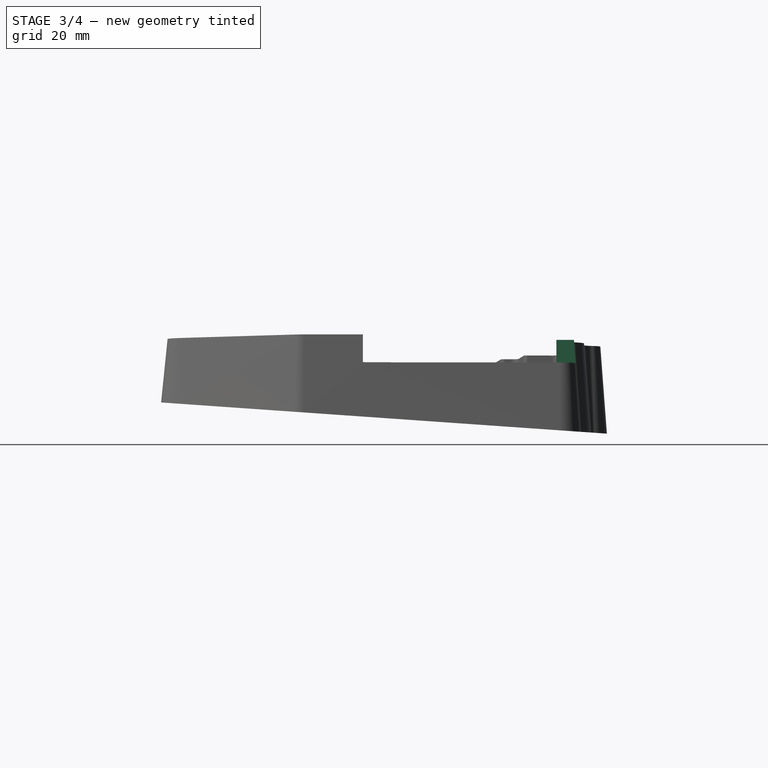
[diagram: stage 3 of 4 — right view after this stage's code; geometry added in this stage tinted green]
FEATURE [Sketcher::SketchObject] Sketch006
  FullyConstrained = false
  MapMode = 5
  Placement = pos=(0,0.138982,1.98754) rot=(-1,0,0;0.069813rad)
  Support = -> [Pocket001]
  sketch-geometry (19):
    g0: ArcOfCircle CenterX=46.5899 CenterY=25.614 CenterZ=0 NormalX=0 NormalY=0 NormalZ=1 AngleXU=0 Radius=5 StartAngle=3.14159 EndAngle=4.71239
    g1: LineSegment StartX=-41.8328 StartY=-17.157 StartZ=0 EndX=-28.8898 EndY=-16.0246 EndZ=0
    g2: ArcOfCircle CenterX=-42.2686 CenterY=-12.176 CenterZ=0 NormalX=0 NormalY=0 NormalZ=1 AngleXU=0 Radius=5 StartAngle=3.22886 EndAngle=4.79966
    g3: LineSegment StartX=-47.2496 StartY=-12.6118 StartZ=0 EndX=-49.6681 EndY=15.0326 EndZ=0
    g4: ArcOfCircle CenterX=-44.6872 CenterY=15.4684 CenterZ=0 NormalX=0 NormalY=0 NormalZ=1 AngleXU=0 Radius=5 StartAngle=1.65806 EndAngle=3.22886
    g5: LineSegment StartX=-25.6307 StartY=20.614 StartZ=0 EndX=-45.123 EndY=20.4493 EndZ=0
    g6: ArcOfCircle CenterX=-27.9311 CenterY=-26.9828 CenterZ=0 NormalX=0 NormalY=0 NormalZ=1 AngleXU=0 Radius=11 StartAngle=0.124861 EndAngle=1.65806
    g7: ArcOfCircle CenterX=-12.0557 CenterY=-24.9902 CenterZ=0 NormalX=0 NormalY=0 NormalZ=1 AngleXU=0 Radius=5 StartAngle=3.26645 EndAngle=4.76475
    g8: ArcOfCircle CenterX=56.5899 CenterY=0.169773 CenterZ=0 NormalX=0 NormalY=0 NormalZ=1 AngleXU=0 Radius=5 StartAngle=4.82657 EndAngle=6.28319
    g9: LineSegment StartX=61.5899 StartY=15.614 StartZ=0 EndX=61.5899 EndY=0.169773 EndZ=0
    g10: ArcOfCircle CenterX=56.5899 CenterY=15.614 CenterZ=0 NormalX=0 NormalY=0 NormalZ=1 AngleXU=0 Radius=5 StartAngle=0 EndAngle=1.5708
    g11: LineSegment StartX=-11.794 StartY=-29.9833 StartZ=0 EndX=39.3016 EndY=-27.3055 EndZ=0
    g12: ArcOfCircle CenterX=58.8686 CenterY=-19.7 CenterZ=0 NormalX=0 NormalY=0 NormalZ=1 AngleXU=0 Radius=15 StartAngle=1.68498 EndAngle=3.27259
    g13: ArcOfCircle CenterX=39.0399 CenterY=-22.3124 CenterZ=0 NormalX=0 NormalY=0 NormalZ=1 AngleXU=0 Radius=5 StartAngle=4.76475 EndAngle=6.41418
    g14: ArcOfCircle CenterX=-25.6307 CenterY=25.614 CenterZ=0 NormalX=0 NormalY=0 NormalZ=1 AngleXU=0 Radius=5 StartAngle=4.71239 EndAngle=6.28319
    g15: ArcOfCircle CenterX=-15.6307 CenterY=25.614 CenterZ=0 NormalX=0 NormalY=0 NormalZ=1 AngleXU=0 Radius=5 StartAngle=1.5708 EndAngle=3.14159
    g16: ArcOfCircle CenterX=36.5899 CenterY=25.614 CenterZ=0 NormalX=0 NormalY=0 NormalZ=1 AngleXU=0 Radius=5 StartAngle=4.42646e-09 EndAngle=1.5708
    g17: LineSegment StartX=46.5899 StartY=20.614 StartZ=0 EndX=56.5899 EndY=20.614 EndZ=0
    g18: LineSegment StartX=36.5899 StartY=30.614 StartZ=0 EndX=-15.6307 EndY=30.614 EndZ=0
  constraints (19):
    c: Coincident(g3,g4)
    c: Coincident(g2,g3)
    c: Coincident(g4,g5)
    c: Coincident(g1,g2)
    c: Coincident(g1,g6)
    c: Coincident(g5,g14)
    c: Coincident(g14,g15)
    c: Coincident(g6,g7)
    c: Coincident(g15,g18)
    c: Coincident(g7,g11)
    c: Coincident(g16,g18)
    c: Coincident(g11,g13)
    c: Coincident(g0,g16)
    c: Coincident(g12,g13)
    c: Coincident(g0,g17)
    c: Coincident(g10,g17)
    c: Coincident(g8,g12)
    c: Coincident(g8,g9)
    c: Coincident(g9,g10)
FEATURE [PartDesign::Pocket] Pocket003
  BaseFeature = -> Pocket002
  Direction = (0,-0.0697565,-0.997564)
  Length = 5
  Length2 = 5
  Profile = -> Sketch006
  ReferenceAxis = -> Sketch006 [N_Axis]
  Type = 0
FEATURE [Sketcher::SketchObject] Sketch007
  ExternalGeometry = -> [Sketch001]
  FullyConstrained = true
  MapMode = 5
  Placement = pos=(-1.04528,-2e-16,19.9452) rot=(0,-1,0;0.05236rad)
  Support = -> [AdditiveLoft]
  sketch-geometry (4):
    g0: LineSegment StartX=110.637 StartY=68.614 StartZ=0 EndX=50.6367 EndY=68.614 EndZ=0
    g1: LineSegment StartX=50.6367 StartY=68.614 StartZ=0 EndX=50.6367 EndY=-11.386 EndZ=0
    g2: LineSegment StartX=50.6367 StartY=-11.386 StartZ=0 EndX=110.637 EndY=-11.386 EndZ=0
    g3: LineSegment StartX=110.637 StartY=-11.386 StartZ=0 EndX=110.637 EndY=68.614 EndZ=0
  constraints (12):
    c: Coincident(g0,g1)
    c: Coincident(g1,g2)
    c: Coincident(g2,g3)
    c: Coincident(g3,g0)
    c: Horizontal(g0)
    c: Horizontal(g2)
    c: Vertical(g1)
    c: Vertical(g3)
    c: Distance(g1,g-3) = 60
    c: DistanceX(g1,g-4) = 30
    c: Distance(g2) = 60
    c: Distance(g3) = 80
FEATURE [PartDesign::Pocket] Pocket004
  BaseFeature = -> Pocket003
  Direction = (0.052336,0,-0.99863)
  Length = 0
  Length2 = 5
  Offset = -2
  Profile = -> Sketch007
  ReferenceAxis = -> Sketch007 [N_Axis]
  Type = 3
  UpToFace = -> Pocket003 [Face100]
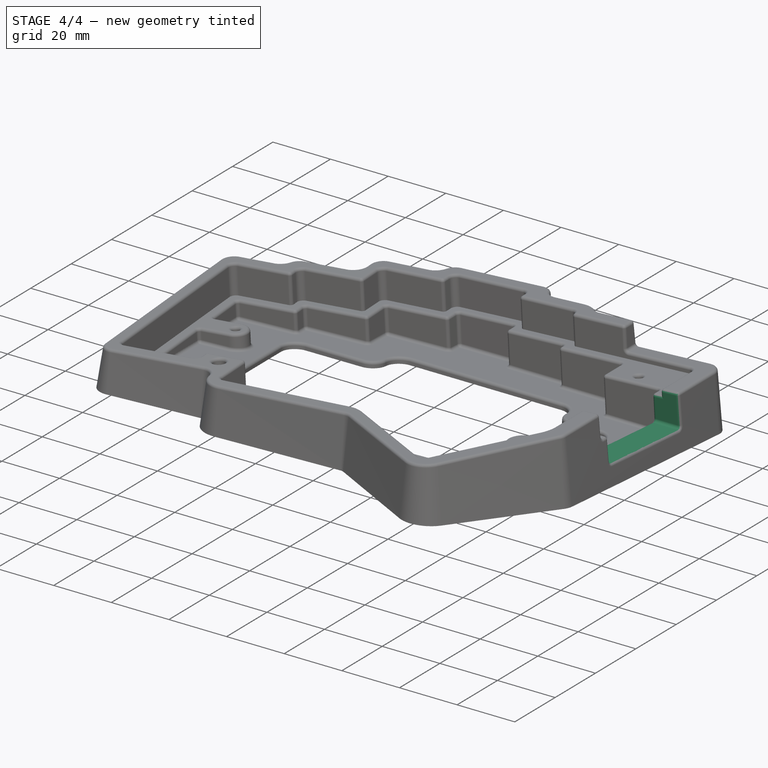
[diagram: stage 4 of 4 — iso view after this stage's code; geometry added in this stage tinted green]
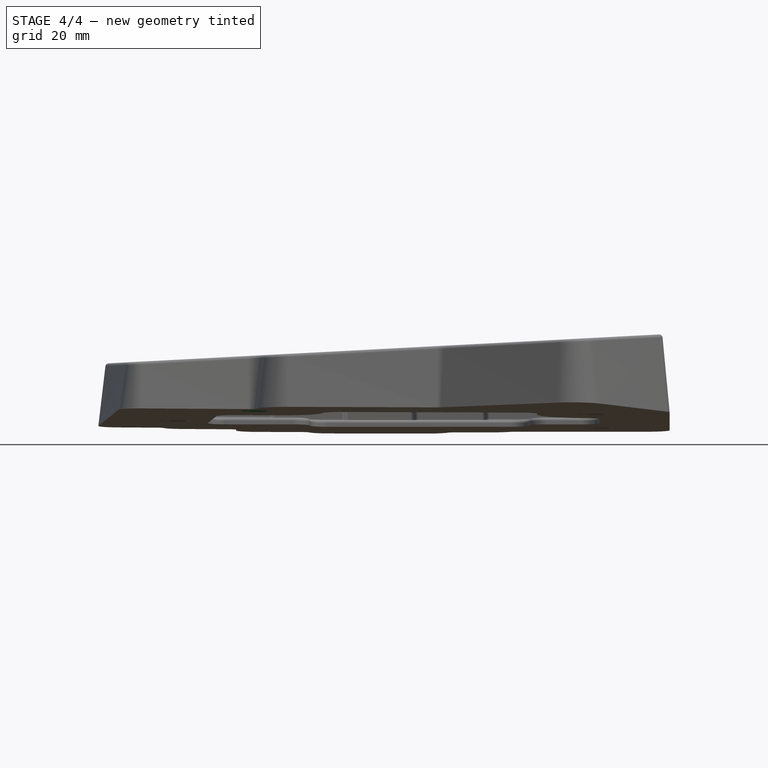
[diagram: stage 4 of 4 — front view after this stage's code; geometry added in this stage tinted green]
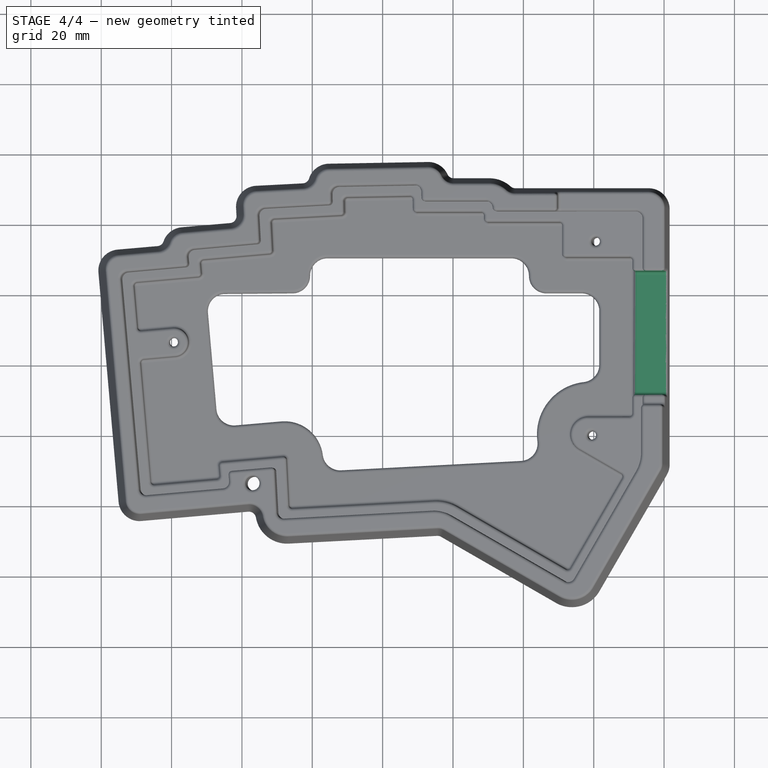
[diagram: stage 4 of 4 — top view after this stage's code; geometry added in this stage tinted green]
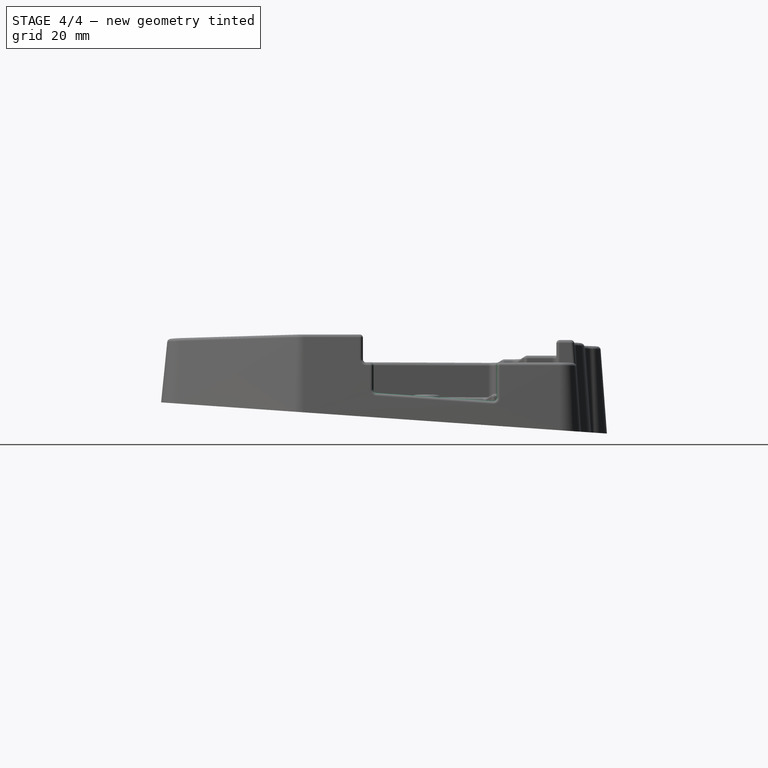
[diagram: stage 4 of 4 — right view after this stage's code; geometry added in this stage tinted green]
FEATURE [Sketcher::SketchObject] Sketch008
  ExternalGeometry = -> [Pocket004]
  FullyConstrained = true
  MapMode = 5
  Placement = pos=(-1.04528,-2e-16,19.9452) rot=(0,-1,0;0.05236rad)
  Support = -> [AdditiveLoft]
  sketch-geometry (4):
    g0: LineSegment StartX=64.5899 StartY=26.614 StartZ=0 EndX=104.59 EndY=26.614 EndZ=0
    g1: LineSegment StartX=104.59 StartY=26.614 StartZ=0 EndX=104.59 EndY=-8.38605 EndZ=0
    g2: LineSegment StartX=104.59 StartY=-8.38605 StartZ=0 EndX=64.5899 EndY=-8.38605 EndZ=0
    g3: LineSegment StartX=64.5899 StartY=-8.38605 StartZ=0 EndX=64.5899 EndY=26.614 EndZ=0
  constraints (12):
    c: Coincident(g0,g1)
    c: Coincident(g1,g2)
    c: Coincident(g2,g3)
    c: Coincident(g3,g0)
    c: Horizontal(g0)
    c: Horizontal(g2)
    c: Vertical(g1)
    c: Vertical(g3)
    c: Distance(g-3,g0) = 3
    c: Distance(g-4,g2) = 3
    c: Distance(g2) = 40
    c: DistanceX(g0,g-4) = 10
FEATURE [PartDesign::Pocket] Pocket005
  BaseFeature = -> Pocket004
  Direction = (0.052336,0,-0.99863)
  Length = 0
  Length2 = 5
  Offset = -5
  Profile = -> Sketch008
  ReferenceAxis = -> Sketch008 [N_Axis]
  Type = 3
  UpToFace = -> Pocket004 [Face61]
FEATURE [PartDesign::Fillet] Fillet
  Base = -> Pocket005 [Face56,Face57,Face58,Face59,Face60,Face61,Face62,Face63,Edge417,Face65,Edge289,Edge287,Edge231]
  BaseFeature = -> Pocket005
  Radius = 0.95
  SupportTransform = false
  UseAllEdges = false
FEATURE [PartDesign::Chamfer] Chamfer001
  Angle = 45
  Base = -> Fillet [Edge61]
  BaseFeature = -> Fillet
  ChamferType = 0
  FlipDirection = false
  Size = 2
  Size2 = 1
  SupportTransform = false
  UseAllEdges = false
FEATURE [PartDesign::Body] Body
  Group = -> [Sketch,Sketch001,Sketch002,Sketch003,Sketch004,AdditiveLoft,Pocket,Pocket001,Hole,Chamfer,Sketch005,Pocket002,Sketch006,Pocket003,Sketch007,Pocket004,Sketch008,Pocket005,Fillet,Chamfer001]
  Origin = -> Origin
  Placement = pos=(0,0,0) rot=(1,0,0;0.069813rad)
  Tip = -> Chamfer001
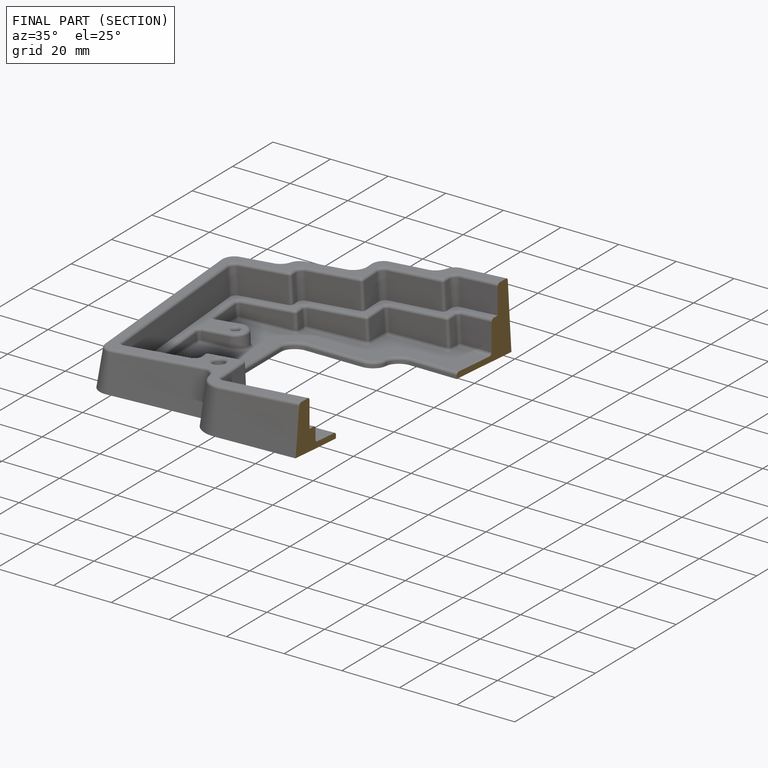
[diagram: finished part — half-section view (interior)]
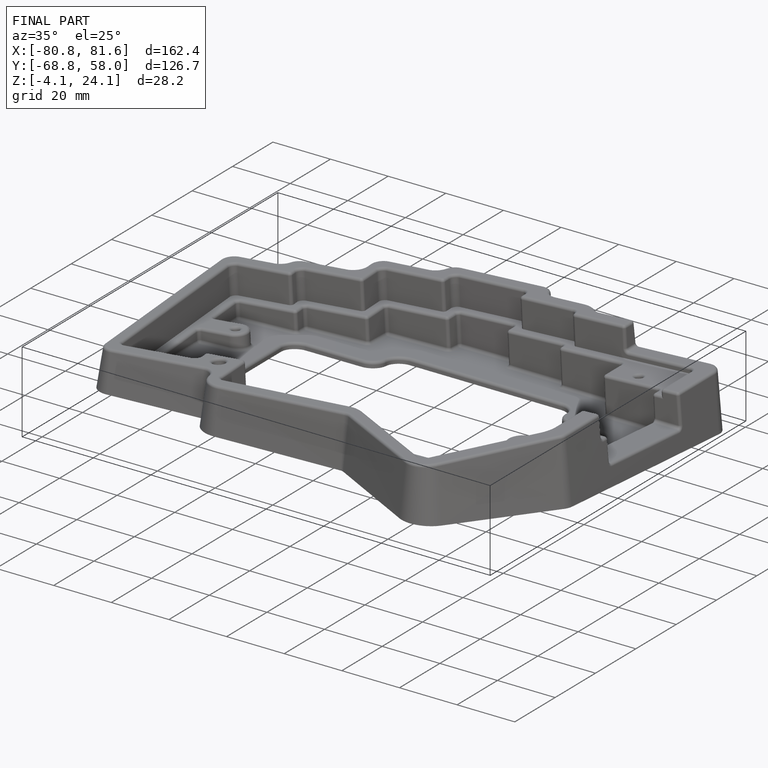
[diagram: finished part — iso view with bounding-box wireframe]
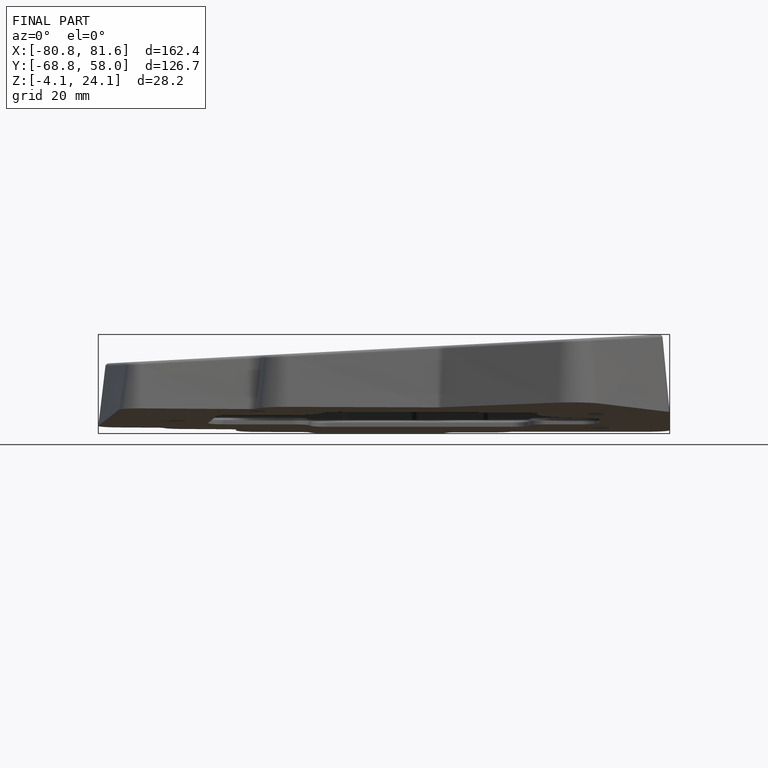
[diagram: finished part — front view with bounding-box wireframe]
